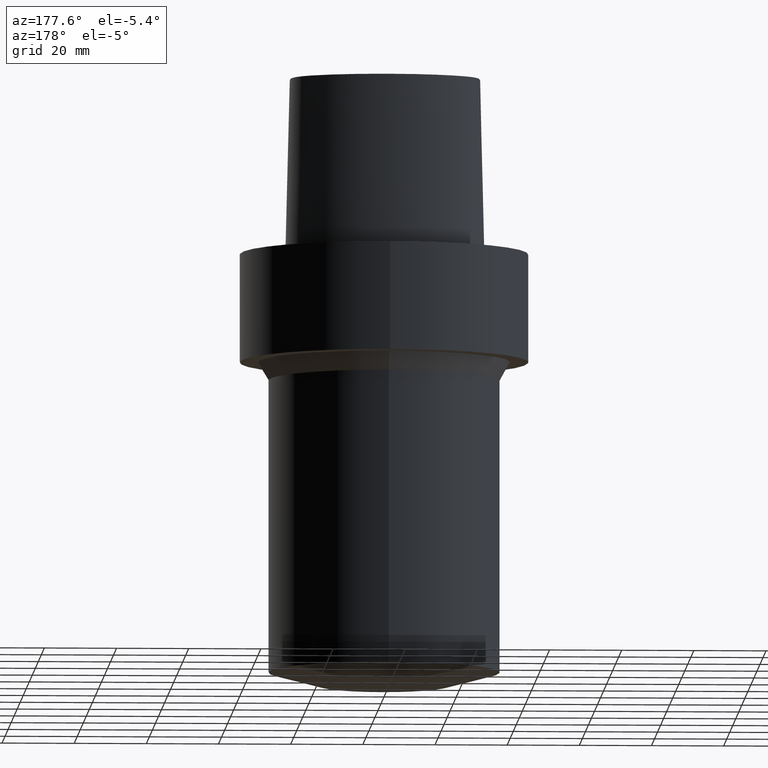
[diagram: clean part render]
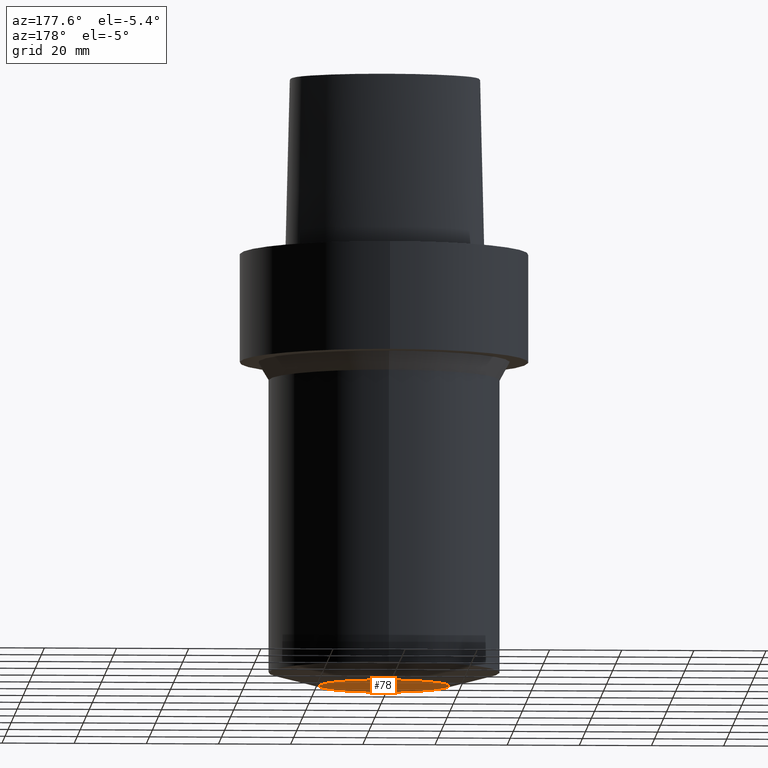
[diagram: same view with one face highlighted and labeled with its STEP entity id]
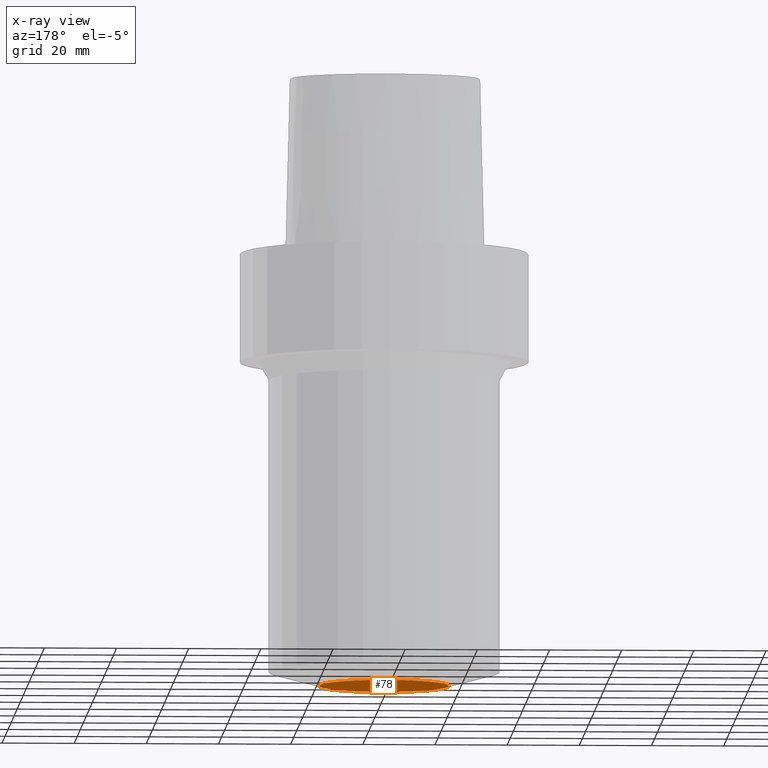
[diagram: x-ray of the same camera — body ghosted, the highlighted face saturated]
A machine part, auxiliary view. The second image highlights one B-rep face of the part: STEP entity #78.
The next image is the same camera in x-ray: the body ghosted, the highlighted face saturated — about 0% of this face is hidden behind the body in this view.
In plain terms, the highlighted planar face has unit normal (0, 0, -1).
Its self-contained STEP definition (entity closure, byte-faithful):
#78=ADVANCED_FACE('',(#92),#93,.T.);
#92=FACE_OUTER_BOUND('',#499,.T.);
#93=PLANE('',#500);
#499=EDGE_LOOP('',(#529));
#500=AXIS2_PLACEMENT_3D('',#530,#531,#532);
#529=ORIENTED_EDGE('',*,*,#562,.F.);
#530=CARTESIAN_POINT('',(7.34788079488412E-015,9.00000000102242,-120.0));
#531=DIRECTION('',(6.12323399573677E-017,1.22464679914735E-016,-1.0));
#532=DIRECTION('',(1.23259516440783E-032,-1.0,-1.22464679914735E-016));
#562=EDGE_CURVE('',#574,#574,#575,.T.);
#574=VERTEX_POINT('',#737);
#575=CIRCLE('',#738,18.0000000020448);
#737=CARTESIAN_POINT('',(7.34788079488412E-015,18.0000000020448,-120.0));
#738=AXIS2_PLACEMENT_3D('',#750,#751,#752);
#750=CARTESIAN_POINT('',(7.34788079488412E-015,1.46957615897682E-014,-120.0));
#751=DIRECTION('',(-6.12323399573677E-017,-1.22464679914735E-016,1.0));
#752=DIRECTION('',(-1.23259516440783E-032,1.0,1.22464679914735E-016));